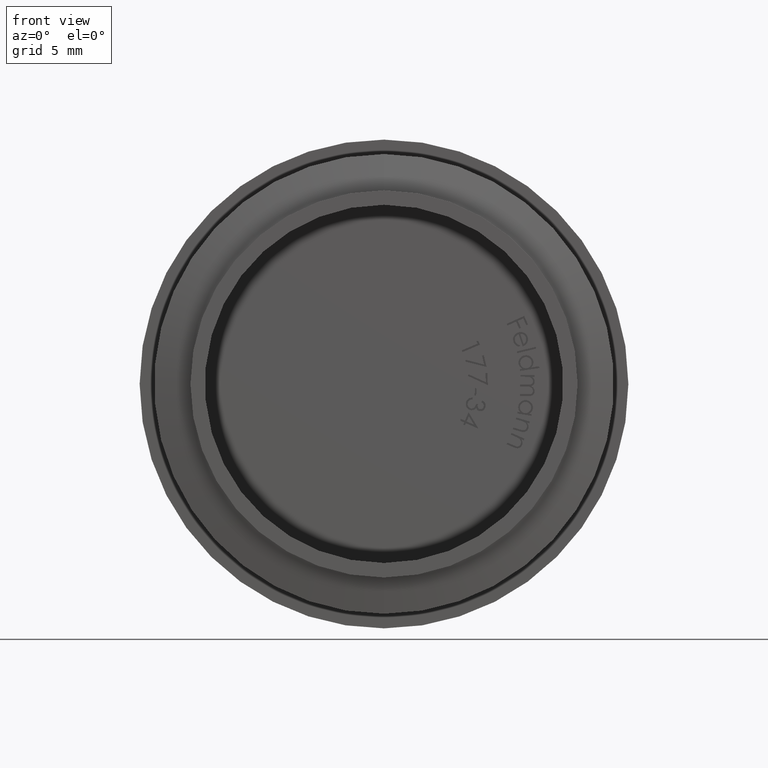
[diagram: clean part render]
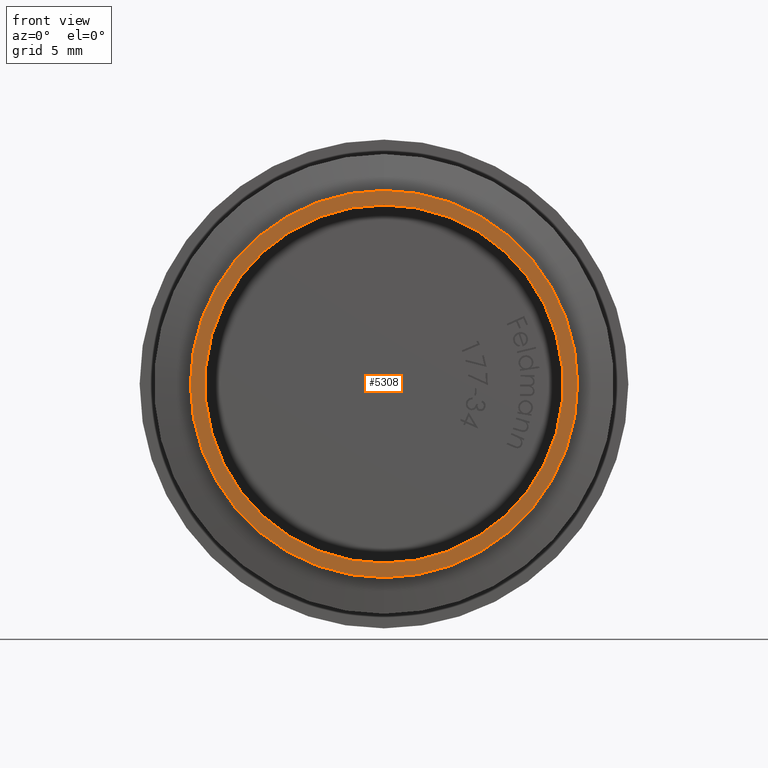
[diagram: same view with one face highlighted and labeled with its STEP entity id]
A machine part, front view. The second image highlights one B-rep face of the part: STEP entity #5308.
In plain terms, the highlighted planar face has unit normal (0, -1, 0).
Its self-contained STEP definition (entity closure, byte-faithful):
#349 = VERTEX_POINT ( 'NONE', #5497 ) ;
#373 = EDGE_LOOP ( 'NONE', ( #6009, #1023 ) ) ;
#1023 = ORIENTED_EDGE ( 'NONE', *, *, #6634, .F. ) ;
#1408 = PLANE ( 'NONE',  #8041 ) ;
#1441 = DIRECTION ( 'NONE',  ( 0.0000000000000000000, -0.0000000000000000000, -1.000000000000000000 ) ) ;
#1693 = EDGE_CURVE ( 'NONE', #3931, #1976, #7712, .T. ) ;
#1976 = VERTEX_POINT ( 'NONE', #2865 ) ;
#2031 = CIRCLE ( 'NONE', #4836, 12.35000000000000000 ) ;
#2126 = CARTESIAN_POINT ( 'NONE',  ( 0.0000000000000000000, -11.50000000000000000, 0.0000000000000000000 ) ) ;
#2436 = DIRECTION ( 'NONE',  ( 0.0000000000000000000, -1.000000000000000000, 0.0000000000000000000 ) ) ;
#2611 = AXIS2_PLACEMENT_3D ( 'NONE', #2126, #7106, #2866 ) ;
#2865 = CARTESIAN_POINT ( 'NONE',  ( 1.512438796946981300E-015, -11.50000000000000000, -12.35000000000000000 ) ) ;
#2866 = DIRECTION ( 'NONE',  ( 0.0000000000000000000, 0.0000000000000000000, -1.000000000000000000 ) ) ;
#3049 = ORIENTED_EDGE ( 'NONE', *, *, #3058, .T. ) ;
#3058 = EDGE_CURVE ( 'NONE', #7617, #349, #5169, .T. ) ;
#3931 = VERTEX_POINT ( 'NONE', #7592 ) ;
#4400 = DIRECTION ( 'NONE',  ( 0.0000000000000000000, -1.000000000000000000, 0.0000000000000000000 ) ) ;
#4519 = FACE_BOUND ( 'NONE', #373, .T. ) ;
#4836 = AXIS2_PLACEMENT_3D ( 'NONE', #8439, #4400, #9087 ) ;
#4860 = EDGE_LOOP ( 'NONE', ( #3049, #7020 ) ) ;
#5117 = CARTESIAN_POINT ( 'NONE',  ( 0.0000000000000000000, -11.50000000000000000, 0.0000000000000000000 ) ) ;
#5169 = CIRCLE ( 'NONE', #2611, 13.35000000000000000 ) ;
#5308 = ADVANCED_FACE ( 'NONE', ( #4519, #8121 ), #1408, .T. ) ;
#5497 = CARTESIAN_POINT ( 'NONE',  ( 1.634903476861716400E-015, -11.50000000000000000, -13.35000000000000000 ) ) ;
#5829 = DIRECTION ( 'NONE',  ( 0.0000000000000000000, -1.000000000000000000, 0.0000000000000000000 ) ) ;
#6009 = ORIENTED_EDGE ( 'NONE', *, *, #1693, .F. ) ;
#6253 = DIRECTION ( 'NONE',  ( 0.0000000000000000000, 0.0000000000000000000, -1.000000000000000000 ) ) ;
#6262 = DIRECTION ( 'NONE',  ( 0.0000000000000000000, -1.000000000000000000, 0.0000000000000000000 ) ) ;
#6277 = CARTESIAN_POINT ( 'NONE',  ( 0.0000000000000000000, -11.50000000000000000, 0.0000000000000000000 ) ) ;
#6354 = CARTESIAN_POINT ( 'NONE',  ( 0.0000000000000000000, -11.50000000000000000, 13.35000000000000000 ) ) ;
#6599 = AXIS2_PLACEMENT_3D ( 'NONE', #6723, #2436, #7388 ) ;
#6634 = EDGE_CURVE ( 'NONE', #1976, #3931, #2031, .T. ) ;
#6723 = CARTESIAN_POINT ( 'NONE',  ( 0.0000000000000000000, -11.50000000000000000, 0.0000000000000000000 ) ) ;
#6955 = AXIS2_PLACEMENT_3D ( 'NONE', #6277, #6262, #6253 ) ;
#7020 = ORIENTED_EDGE ( 'NONE', *, *, #8791, .T. ) ;
#7106 = DIRECTION ( 'NONE',  ( 0.0000000000000000000, -1.000000000000000000, 0.0000000000000000000 ) ) ;
#7388 = DIRECTION ( 'NONE',  ( 0.0000000000000000000, 0.0000000000000000000, -1.000000000000000000 ) ) ;
#7592 = CARTESIAN_POINT ( 'NONE',  ( 0.0000000000000000000, -11.50000000000000000, 12.35000000000000000 ) ) ;
#7617 = VERTEX_POINT ( 'NONE', #6354 ) ;
#7712 = CIRCLE ( 'NONE', #6955, 12.35000000000000000 ) ;
#8041 = AXIS2_PLACEMENT_3D ( 'NONE', #5117, #5829, #1441 ) ;
#8121 = FACE_OUTER_BOUND ( 'NONE', #4860, .T. ) ;
#8439 = CARTESIAN_POINT ( 'NONE',  ( 0.0000000000000000000, -11.50000000000000000, 0.0000000000000000000 ) ) ;
#8664 = CIRCLE ( 'NONE', #6599, 13.35000000000000000 ) ;
#8791 = EDGE_CURVE ( 'NONE', #349, #7617, #8664, .T. ) ;
#9087 = DIRECTION ( 'NONE',  ( 0.0000000000000000000, 0.0000000000000000000, -1.000000000000000000 ) ) ;